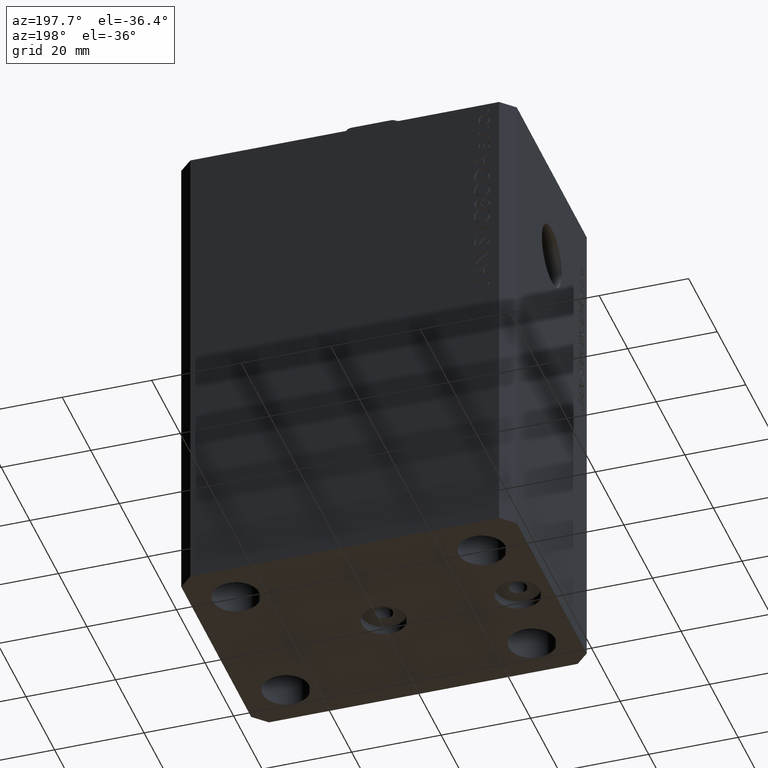
[diagram: clean part render]
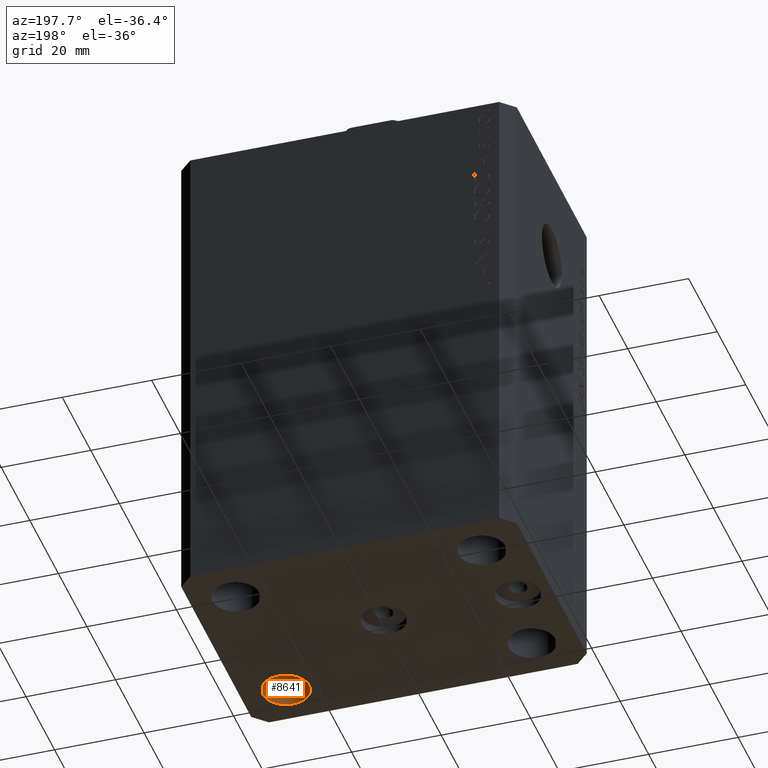
[diagram: same view with one face highlighted and labeled with its STEP entity id]
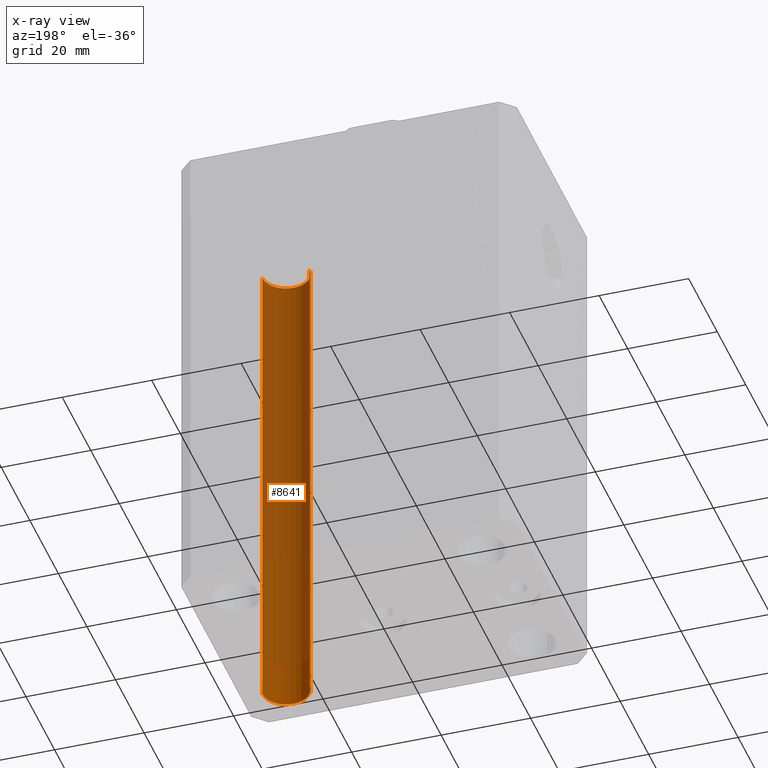
[diagram: x-ray of the same camera — body ghosted, the highlighted face saturated]
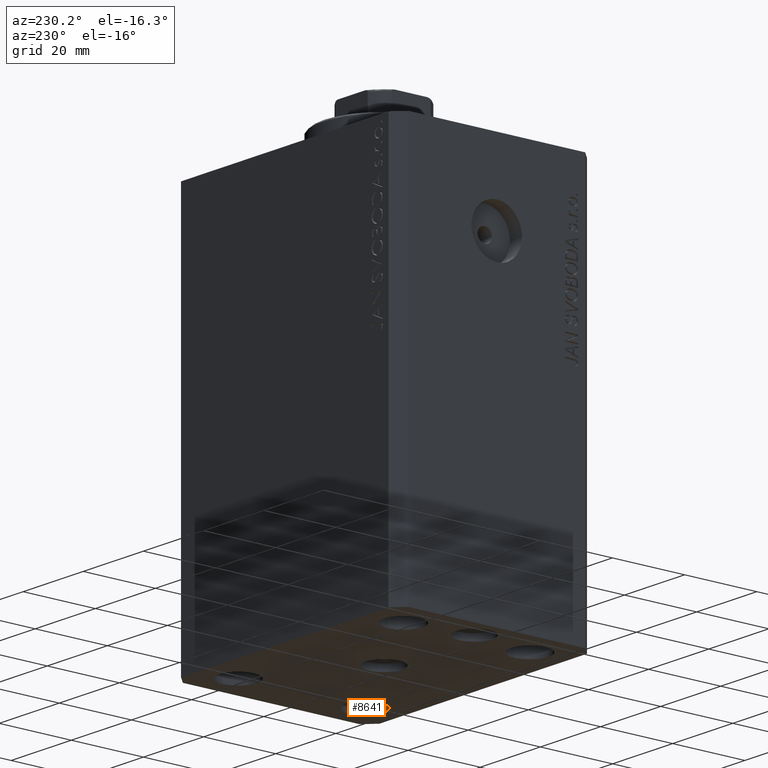
[diagram: same view with one face highlighted and labeled with its STEP entity id]
A machine part, auxiliary view. The second image highlights one B-rep face of the part: STEP entity #8641.
The next image is the same camera in x-ray: the body ghosted, the highlighted face saturated — about 91% of this face is hidden behind the body in this view.
A second angle (auxiliary view) of the same face is appended — the face is thin or edge-on in the first view.
In plain terms, the highlighted cylindrical surface (edge-blend (fillet) strip) has radius 5.25 mm, axis along (0, 0, 1).
Its self-contained STEP definition (entity closure, byte-faithful):
#7882 = AXIS2_PLACEMENT_3D ( 'NONE', #28757, #42723, #25384 ) ;
#8454 = DIRECTION ( 'NONE',  ( 1.000000000000000000, 0.000000000000000000, 0.000000000000000000 ) ) ;
#8542 = ORIENTED_EDGE ( 'NONE', *, *, #38308, .T. ) ;
#8641 = ADVANCED_FACE ( 'NONE', ( #18843 ), #29637, .F. ) ;
#8864 = DIRECTION ( 'NONE',  ( -0.000000000000000000, -0.000000000000000000, 1.000000000000000000 ) ) ;
#9300 = ORIENTED_EDGE ( 'NONE', *, *, #35503, .T. ) ;
#9759 = AXIS2_PLACEMENT_3D ( 'NONE', #28820, #15533, #29261 ) ;
#9991 = VERTEX_POINT ( 'NONE', #23677 ) ;
#11710 = VECTOR ( 'NONE', #33900, 1000.000000000000000 ) ;
#11898 = VECTOR ( 'NONE', #8864, 1000.000000000000000 ) ;
#12174 = VERTEX_POINT ( 'NONE', #22297 ) ;
#12638 = CIRCLE ( 'NONE', #9759, 5.250000000000000888 ) ;
#15293 = CARTESIAN_POINT ( 'NONE',  ( 32.74999999999999289, -17.50000000000000000, 0.000000000000000000 ) ) ;
#15533 = DIRECTION ( 'NONE',  ( 0.000000000000000000, 0.000000000000000000, 1.000000000000000000 ) ) ;
#18835 = CARTESIAN_POINT ( 'NONE',  ( 27.49999999999999289, -17.50000000000000000, -110.0000000000000000 ) ) ;
#18843 = FACE_OUTER_BOUND ( 'NONE', #36768, .T. ) ;
#19474 = LINE ( 'NONE', #23079, #11898 ) ;
#20520 = CIRCLE ( 'NONE', #39246, 5.250000000000000888 ) ;
#21161 = VERTEX_POINT ( 'NONE', #36258 ) ;
#21554 = EDGE_CURVE ( 'NONE', #12174, #34077, #19474, .T. ) ;
#22297 = CARTESIAN_POINT ( 'NONE',  ( 32.74999999999999289, -17.50000000000000000, -110.0000000000000000 ) ) ;
#23079 = CARTESIAN_POINT ( 'NONE',  ( 32.74999999999999289, -17.50000000000000000, -124.8492424049175042 ) ) ;
#23677 = CARTESIAN_POINT ( 'NONE',  ( 22.24999999999999289, -17.50000000000000000, 0.000000000000000000 ) ) ;
#25384 = DIRECTION ( 'NONE',  ( 1.000000000000000000, 0.000000000000000000, 0.000000000000000000 ) ) ;
#26357 = ORIENTED_EDGE ( 'NONE', *, *, #34268, .T. ) ;
#27790 = ORIENTED_EDGE ( 'NONE', *, *, #21554, .F. ) ;
#28757 = CARTESIAN_POINT ( 'NONE',  ( 27.49999999999999289, -17.50000000000000000, -124.8492424049175042 ) ) ;
#28820 = CARTESIAN_POINT ( 'NONE',  ( 27.49999999999999289, -17.50000000000000000, 0.000000000000000000 ) ) ;
#29261 = DIRECTION ( 'NONE',  ( 1.000000000000000000, 0.000000000000000000, 0.000000000000000000 ) ) ;
#29637 = CYLINDRICAL_SURFACE ( 'NONE', #7882, 5.250000000000000888 ) ;
#30092 = CARTESIAN_POINT ( 'NONE',  ( 22.24999999999999289, -17.50000000000000000, -124.8492424049175042 ) ) ;
#33900 = DIRECTION ( 'NONE',  ( -0.000000000000000000, -0.000000000000000000, 1.000000000000000000 ) ) ;
#34077 = VERTEX_POINT ( 'NONE', #15293 ) ;
#34268 = EDGE_CURVE ( 'NONE', #12174, #21161, #20520, .T. ) ;
#35503 = EDGE_CURVE ( 'NONE', #9991, #34077, #12638, .T. ) ;
#35959 = DIRECTION ( 'NONE',  ( -0.000000000000000000, -0.000000000000000000, -1.000000000000000000 ) ) ;
#36258 = CARTESIAN_POINT ( 'NONE',  ( 22.24999999999999289, -17.50000000000000000, -110.0000000000000000 ) ) ;
#36768 = EDGE_LOOP ( 'NONE', ( #26357, #8542, #9300, #27790 ) ) ;
#38308 = EDGE_CURVE ( 'NONE', #21161, #9991, #40234, .T. ) ;
#39246 = AXIS2_PLACEMENT_3D ( 'NONE', #18835, #35959, #8454 ) ;
#40234 = LINE ( 'NONE', #30092, #11710 ) ;
#42723 = DIRECTION ( 'NONE',  ( -0.000000000000000000, -0.000000000000000000, 1.000000000000000000 ) ) ;